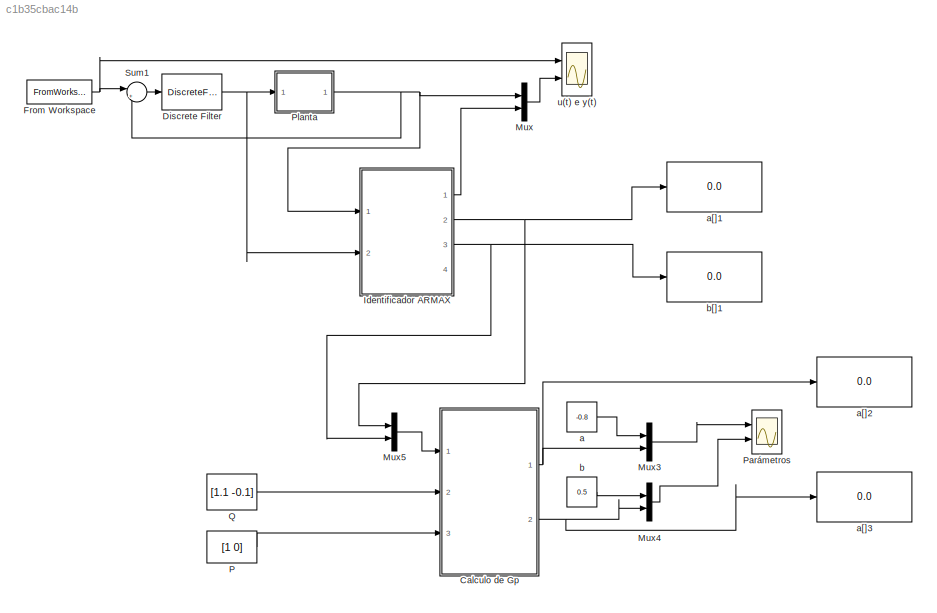
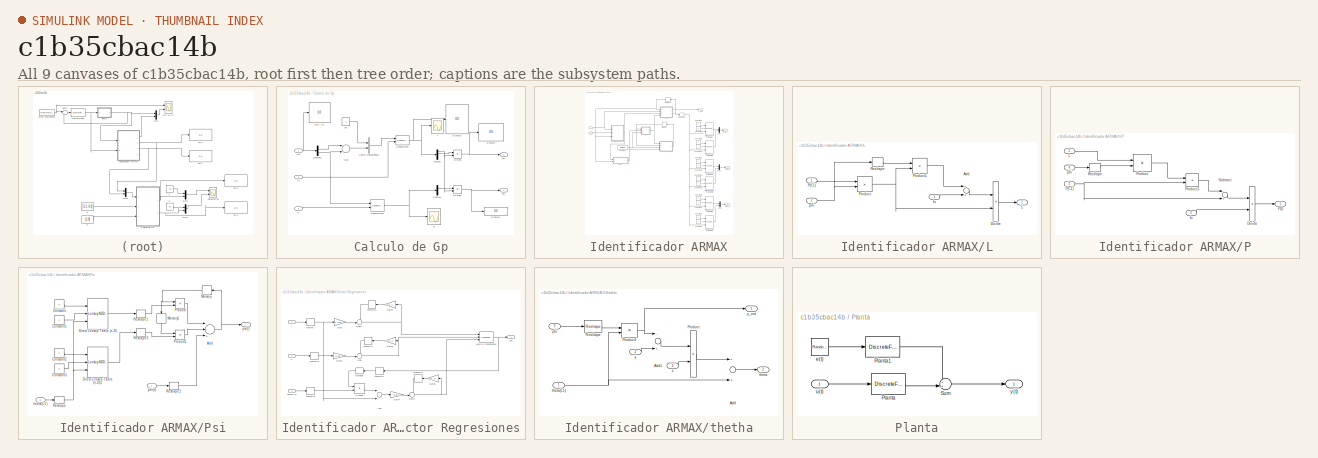
[diagram: thumbnail index - all 9 canvases of the model, root first then tree order]
MODEL slx_c1b35cbac14b
KIND model
CONFIG AbsTol = auto
CONFIG FixedStep = auto
CONFIG MaxStep = auto
CONFIG MinStep = auto
CONFIG RelTol = 1e-3
CONFIG SampleTimeConstraint = Unconstrained
CONFIG Solver = ode45
CONFIG SolverMode = Auto
CONFIG SolverName = ode45
CONFIG StartTime = 0.0
CONFIG StopTime = 520
BLOCK [SubSystem] Calculo de Gp
  Ports = [3, 2]
  RequestExecContextInheritance = off
BLOCK [Scope] Calculo de Gp/A
  DataFormat = StructureWithTime
  Floating = off
  NumInputPorts = 1
  Ports = [1]
  SampleTime = 0
  SaveName = ScopeData2
BLOCK [Scope] Calculo de Gp/B
  DataFormat = StructureWithTime
  Floating = off
  NumInputPorts = 1
  Ports = [1]
  SampleTime = 0
  SaveName = ScopeData3
BLOCK [Display] Calculo de Gp/Bb y Ab 
  Decimation = 1
  Ports = [1]
BLOCK [Reference] Calculo de Gp/Convolution  REF=dspsigops/Convolution
  LockScale = off
  Ports = [2, 1]
  SourceBlock = dspsigops/Convolution
  SourceType = Convolution
  accumDataTypeStr = Inherit: Inherit via internal rule
  accumFracLength = 30
  accumLastDataTypeStr = Inherit: Inherit via internal rule
  accumMode = Inherit via internal rule
  accumWordLength = 32
  additionalParams = off
  allowOverrides = on
  domain = Time
  outputDataTypeStr = Inherit: Same as accumulator
  outputFracLength = 15
  outputLastDataTypeStr = Inherit: Same as accumulator
  outputMax = []
  outputMin = []
  outputMode = Same as accumulator
  outputWordLength = 16
  overflowMode = off
  prodOutputDataTypeStr = Inherit: Inherit via internal rule
  prodOutputFracLength = 30
  prodOutputLastDataTypeStr = Inherit: Inherit via internal rule
  prodOutputMode = Inherit via internal rule
  prodOutputWordLength = 32
  roundingMode = Floor
BLOCK [Reference] Calculo de Gp/Convolution1  REF=dspsigops/Convolution
  LockScale = off
  Ports = [2, 1]
  SourceBlock = dspsigops/Convolution
  SourceType = Convolution
  accumDataTypeStr = Inherit: Inherit via internal rule
  accumFracLength = 30
  accumLastDataTypeStr = Inherit: Inherit via internal rule
  accumMode = Inherit via internal rule
  accumWordLength = 32
  additionalParams = off
  allowOverrides = on
  domain = Time
  outputDataTypeStr = Inherit: Same as accumulator
  outputFracLength = 15
  outputLastDataTypeStr = Inherit: Same as accumulator
  outputMax = []
  outputMin = []
  outputMode = Same as accumulator
  outputWordLength = 16
  overflowMode = off
  prodOutputDataTypeStr = Inherit: Inherit via internal rule
  prodOutputFracLength = 30
  prodOutputLastDataTypeStr = Inherit: Inherit via internal rule
  prodOutputMode = Inherit via internal rule
  prodOutputWordLength = 32
  roundingMode = Floor
BLOCK [Demux] Calculo de Gp/Demux
  DisplayOption = bar
  Ports = [1, 4]
BLOCK [Demux] Calculo de Gp/Demux1
  DisplayOption = bar
  Outputs = 3
  Ports = [1, 3]
BLOCK [Demux] Calculo de Gp/Demux2
  DisplayOption = bar
  Outputs = 2
  Ports = [1, 2]
BLOCK [Display] Calculo de Gp/Display
  Decimation = 1
  Ports = [1]
BLOCK [Display] Calculo de Gp/Display1
  Decimation = 1
  Ports = [1]
BLOCK [Display] Calculo de Gp/Display2
  Decimation = 1
  Ports = [1]
BLOCK [Product] Calculo de Gp/Divide
  InputSameDT = off
  Inputs = */
  OutDataTypeStr = Inherit: Inherit via internal rule
  Ports = [2, 1]
  RndMeth = Floor
  SaturateOnIntegerOverflow = off
BLOCK [Product] Calculo de Gp/Divide1
  InputSameDT = off
  Inputs = */
  OutDataTypeStr = Inherit: Inherit via internal rule
  Ports = [2, 1]
  RndMeth = Floor
  SaturateOnIntegerOverflow = off
BLOCK [Inport] Calculo de Gp/Gcl
  IconDisplay = Port number
BLOCK [Inport] Calculo de Gp/P
  IconDisplay = Port number
  Port = 3
BLOCK [Inport] Calculo de Gp/Q
  IconDisplay = Port number
  Port = 2
BLOCK [Sum] Calculo de Gp/Sum
  InputSameDT = off
  Inputs = +-
  OutDataTypeStr = Inherit: Inherit via internal rule
  Ports = [2, 1]
  SaturateOnIntegerOverflow = off
BLOCK [Concatenate] Calculo de Gp/Vector Concatenate
  Ports = [2, 1]
BLOCK [Constant] Calculo de Gp/a0
BLOCK [Outport] Calculo de Gp/a[]
  IconDisplay = Port number
BLOCK [Outport] Calculo de Gp/b[]
  IconDisplay = Port number
  Port = 2
BLOCK [DiscreteFilter] Discrete Filter
  Denominator = [1]
  InputPortMap = u0
  Numerator = [1.1 -0.1]
  Ports = [1, 1]
BLOCK [FromWorkspace] From Workspace
  SampleTime = Ts
  VariableName = prbs
  ZeroCross = on
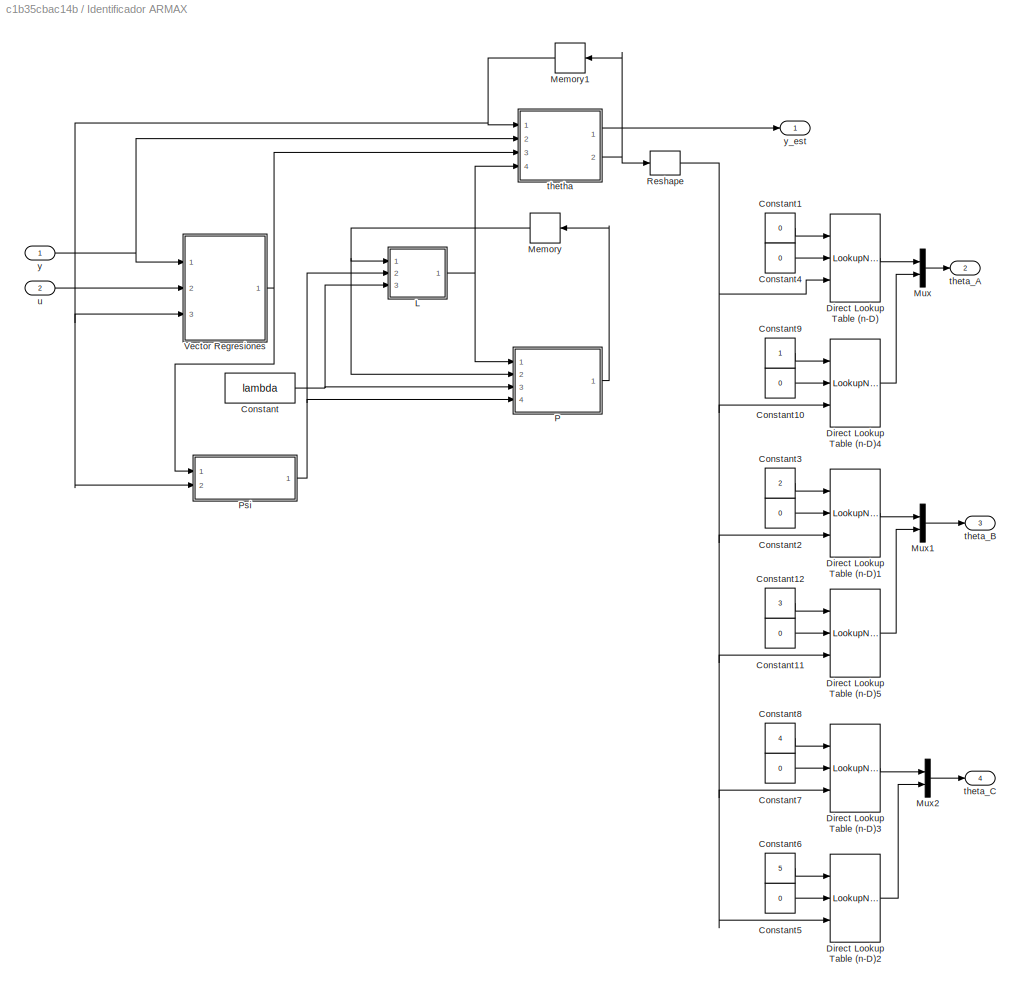
BLOCK [SubSystem] Identificador ARMAX
  Ports = [2, 4]
  RequestExecContextInheritance = off
BLOCK [Constant] Identificador ARMAX/Constant
  Value = lambda
BLOCK [Constant] Identificador ARMAX/Constant1
  Value = 0
BLOCK [Constant] Identificador ARMAX/Constant10
  Value = 0
BLOCK [Constant] Identificador ARMAX/Constant11
  Value = 0
BLOCK [Constant] Identificador ARMAX/Constant12
  Value = 3
BLOCK [Constant] Identificador ARMAX/Constant2
  Value = 0
BLOCK [Constant] Identificador ARMAX/Constant3
  Value = 2
BLOCK [Constant] Identificador ARMAX/Constant4
  Value = 0
BLOCK [Constant] Identificador ARMAX/Constant5
  Value = 0
BLOCK [Constant] Identificador ARMAX/Constant6
  Value = 5
BLOCK [Constant] Identificador ARMAX/Constant7
  Value = 0
BLOCK [Constant] Identificador ARMAX/Constant8
  Value = 4
BLOCK [Constant] Identificador ARMAX/Constant9
BLOCK [LookupNDDirect] Identificador ARMAX/Direct Lookup Table (n-D)
  Ports = [3, 1]
  TableIsInput = on
BLOCK [LookupNDDirect] Identificador ARMAX/Direct Lookup Table (n-D)1
  Ports = [3, 1]
  TableIsInput = on
BLOCK [LookupNDDirect] Identificador ARMAX/Direct Lookup Table (n-D)2
  Ports = [3, 1]
  TableIsInput = on
BLOCK [LookupNDDirect] Identificador ARMAX/Direct Lookup Table (n-D)3
  Ports = [3, 1]
  TableIsInput = on
BLOCK [LookupNDDirect] Identificador ARMAX/Direct Lookup Table (n-D)4
  Ports = [3, 1]
  TableIsInput = on
BLOCK [LookupNDDirect] Identificador ARMAX/Direct Lookup Table (n-D)5
  Ports = [3, 1]
  TableIsInput = on
BLOCK [SubSystem] Identificador ARMAX/L
  Ports = [3, 1]
  RequestExecContextInheritance = off
BLOCK [Sum] Identificador ARMAX/L/Add
  InputSameDT = off
  OutDataTypeStr = Inherit: Inherit via internal rule
  Ports = [2, 1]
  SaturateOnIntegerOverflow = off
BLOCK [Product] Identificador ARMAX/L/Divide
  InputSameDT = off
  Inputs = /*
  OutDataTypeStr = Inherit: Inherit via internal rule
  Ports = [2, 1]
  RndMeth = Floor
  SaturateOnIntegerOverflow = off
BLOCK [Outport] Identificador ARMAX/L/L
  IconDisplay = Port number
BLOCK [Inport] Identificador ARMAX/L/P(t-1)
  IconDisplay = Port number
BLOCK [Product] Identificador ARMAX/L/Product
  InputSameDT = off
  Multiplication = Matrix(*)
  OutDataTypeStr = Inherit: Inherit via internal rule
  Ports = [2, 1]
  RndMeth = Floor
  SaturateOnIntegerOverflow = off
BLOCK [Product] Identificador ARMAX/L/Product1
  InputSameDT = off
  Multiplication = Matrix(*)
  OutDataTypeStr = Inherit: Inherit via internal rule
  Ports = [2, 1]
  RndMeth = Floor
  SaturateOnIntegerOverflow = off
BLOCK [Reshape] Identificador ARMAX/L/Reshape
  OutputDimensionality = Row vector (2-D)
  Ports = [1, 1]
BLOCK [Inport] Identificador ARMAX/L/fo
  IconDisplay = Port number
  Port = 3
BLOCK [Inport] Identificador ARMAX/L/phi
  IconDisplay = Port number
  Port = 2
BLOCK [Memory] Identificador ARMAX/Memory
  X0 = 1e6*eye(6)
BLOCK [Memory] Identificador ARMAX/Memory1
BLOCK [Mux] Identificador ARMAX/Mux
  DisplayOption = bar
  Inputs = 2
  Ports = [2, 1]
BLOCK [Mux] Identificador ARMAX/Mux1
  DisplayOption = bar
  Inputs = 2
  Ports = [2, 1]
BLOCK [Mux] Identificador ARMAX/Mux2
  DisplayOption = bar
  Inputs = 2
  Ports = [2, 1]
BLOCK [SubSystem] Identificador ARMAX/P
  Ports = [4, 1]
  RequestExecContextInheritance = off
BLOCK [Product] Identificador ARMAX/P/Divide
  InputSameDT = off
  Inputs = */
  OutDataTypeStr = Inherit: Inherit via internal rule
  Ports = [2, 1]
  RndMeth = Floor
  SaturateOnIntegerOverflow = off
BLOCK [Inport] Identificador ARMAX/P/L
  IconDisplay = Port number
BLOCK [Outport] Identificador ARMAX/P/P(t)
  IconDisplay = Port number
BLOCK [Inport] Identificador ARMAX/P/P(t-1)
  IconDisplay = Port number
  Port = 2
BLOCK [Product] Identificador ARMAX/P/Product
  InputSameDT = off
  Multiplication = Matrix(*)
  OutDataTypeStr = Inherit: Inherit via internal rule
  Ports = [2, 1]
  RndMeth = Floor
  SaturateOnIntegerOverflow = off
BLOCK [Product] Identificador ARMAX/P/Product1
  InputSameDT = off
  Multiplication = Matrix(*)
  OutDataTypeStr = Inherit: Inherit via internal rule
  Ports = [2, 1]
  RndMeth = Floor
  SaturateOnIntegerOverflow = off
BLOCK [Reshape] Identificador ARMAX/P/Reshape
  OutputDimensionality = Row vector (2-D)
  Ports = [1, 1]
BLOCK [Sum] Identificador ARMAX/P/Subtract
  InputSameDT = off
  Inputs = -+
  OutDataTypeStr = Inherit: Inherit via internal rule
  Ports = [2, 1]
  SaturateOnIntegerOverflow = off
BLOCK [Inport] Identificador ARMAX/P/fo
  IconDisplay = Port number
  Port = 3
BLOCK [Inport] Identificador ARMAX/P/phi
  IconDisplay = Port number
  Port = 4
BLOCK [SubSystem] Identificador ARMAX/Psi
  Ports = [2, 1]
  RequestExecContextInheritance = off
BLOCK [Sum] Identificador ARMAX/Psi/Add
  InputSameDT = off
  Inputs = --+
  OutDataTypeStr = Inherit: Inherit via internal rule
  Ports = [3, 1]
  SaturateOnIntegerOverflow = off
BLOCK [Constant] Identificador ARMAX/Psi/Constant
  Value = 4
BLOCK [Constant] Identificador ARMAX/Psi/Constant1
  Value = 0
BLOCK [Constant] Identificador ARMAX/Psi/Constant2
  Value = 5
BLOCK [Constant] Identificador ARMAX/Psi/Constant3
  Value = 0
BLOCK [LookupNDDirect] Identificador ARMAX/Psi/Direct Lookup Table (n-D)
  Ports = [3, 1]
  TableIsInput = on
BLOCK [LookupNDDirect] Identificador ARMAX/Psi/Direct Lookup Table (n-D)1
  Ports = [3, 1]
  TableIsInput = on
BLOCK [Memory] Identificador ARMAX/Psi/Memory
BLOCK [Memory] Identificador ARMAX/Psi/Memory1
BLOCK [Product] Identificador ARMAX/Psi/Product
  InputSameDT = off
  Multiplication = Matrix(*)
  OutDataTypeStr = Inherit: Inherit via internal rule
  Ports = [2, 1]
  RndMeth = Floor
  SaturateOnIntegerOverflow = off
BLOCK [Product] Identificador ARMAX/Psi/Product1
  InputSameDT = off
  Multiplication = Matrix(*)
  OutDataTypeStr = Inherit: Inherit via internal rule
  Ports = [2, 1]
  RndMeth = Floor
  SaturateOnIntegerOverflow = off
BLOCK [Reshape] Identificador ARMAX/Psi/Reshape
  OutputDimensionality = Column vector (2-D)
  Ports = [1, 1]
BLOCK [Reshape] Identificador ARMAX/Psi/Reshape1
  OutputDimensionality = Row vector (2-D)
  Ports = [1, 1]
BLOCK [Reshape] Identificador ARMAX/Psi/Reshape2
  OutputDimensionality = Column vector (2-D)
  Ports = [1, 1]
BLOCK [Reshape] Identificador ARMAX/Psi/Reshape3
  OutputDimensionality = Row vector (2-D)
  Ports = [1, 1]
BLOCK [Inport] Identificador ARMAX/Psi/phi(t)
  IconDisplay = Port number
BLOCK [Outport] Identificador ARMAX/Psi/psi(t)
  IconDisplay = Port number
BLOCK [Inport] Identificador ARMAX/Psi/theta(t-1)
  IconDisplay = Port number
  Port = 2
BLOCK [Reshape] Identificador ARMAX/Reshape
  OutputDimensionality = Column vector (2-D)
  Ports = [1, 1]
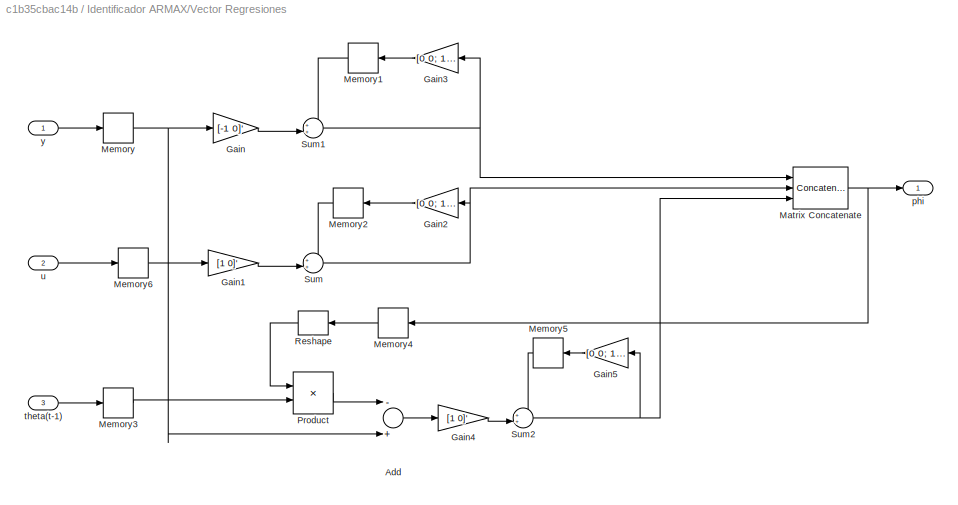
BLOCK [SubSystem] Identificador ARMAX/Vector Regresiones
  Ports = [3, 1]
  RequestExecContextInheritance = off
BLOCK [Sum] Identificador ARMAX/Vector Regresiones/Add
  InputSameDT = off
  Inputs = -+
  OutDataTypeStr = Inherit: Inherit via internal rule
  Ports = [2, 1]
  SaturateOnIntegerOverflow = off
BLOCK [Gain] Identificador ARMAX/Vector Regresiones/Gain
  Gain = [-1 0]'
  Multiplication = Matrix(K*u)
  OutDataTypeStr = Inherit: Inherit via internal rule
  ParamDataTypeStr = Inherit: Inherit via internal rule
  SaturateOnIntegerOverflow = off
BLOCK [Gain] Identificador ARMAX/Vector Regresiones/Gain1
  Gain = [1 0]'
  Multiplication = Matrix(K*u)
  OutDataTypeStr = Inherit: Inherit via internal rule
  ParamDataTypeStr = Inherit: Inherit via internal rule
  SaturateOnIntegerOverflow = off
BLOCK [Gain] Identificador ARMAX/Vector Regresiones/Gain2
  Gain = [0 0; 1 0]
  Multiplication = Matrix(K*u)
  OutDataTypeStr = Inherit: Inherit via internal rule
  ParamDataTypeStr = Inherit: Inherit via internal rule
  SaturateOnIntegerOverflow = off
BLOCK [Gain] Identificador ARMAX/Vector Regresiones/Gain3
  Gain = [0 0; 1 0]
  Multiplication = Matrix(K*u)
  OutDataTypeStr = Inherit: Inherit via internal rule
  ParamDataTypeStr = Inherit: Inherit via internal rule
  SaturateOnIntegerOverflow = off
BLOCK [Gain] Identificador ARMAX/Vector Regresiones/Gain4
  Gain = [1 0]'
  Multiplication = Matrix(K*u)
  OutDataTypeStr = Inherit: Inherit via internal rule
  ParamDataTypeStr = Inherit: Inherit via internal rule
  SaturateOnIntegerOverflow = off
BLOCK [Gain] Identificador ARMAX/Vector Regresiones/Gain5
  Gain = [0 0; 1 0]
  Multiplication = Matrix(K*u)
  OutDataTypeStr = Inherit: Inherit via internal rule
  ParamDataTypeStr = Inherit: Inherit via internal rule
  SaturateOnIntegerOverflow = off
BLOCK [Concatenate] Identificador ARMAX/Vector Regresiones/Matrix Concatenate
  Mode = Multidimensional array
  NumInputs = 3
  Ports = [3, 1]
BLOCK [Memory] Identificador ARMAX/Vector Regresiones/Memory
BLOCK [Memory] Identificador ARMAX/Vector Regresiones/Memory1
BLOCK [Memory] Identificador ARMAX/Vector Regresiones/Memory2
BLOCK [Memory] Identificador ARMAX/Vector Regresiones/Memory3
BLOCK [Memory] Identificador ARMAX/Vector Regresiones/Memory4
BLOCK [Memory] Identificador ARMAX/Vector Regresiones/Memory5
BLOCK [Memory] Identificador ARMAX/Vector Regresiones/Memory6
BLOCK [Product] Identificador ARMAX/Vector Regresiones/Product
  InputSameDT = off
  Multiplication = Matrix(*)
  OutDataTypeStr = Inherit: Inherit via internal rule
  Ports = [2, 1]
  RndMeth = Floor
  SaturateOnIntegerOverflow = off
BLOCK [Reshape] Identificador ARMAX/Vector Regresiones/Reshape
  OutputDimensionality = Row vector (2-D)
  Ports = [1, 1]
BLOCK [Sum] Identificador ARMAX/Vector Regresiones/Sum
  IconShape = round
  InputSameDT = off
  Inputs = ++|
  OutDataTypeStr = Inherit: Inherit via internal rule
  Ports = [2, 1]
  SaturateOnIntegerOverflow = off
BLOCK [Sum] Identificador ARMAX/Vector Regresiones/Sum1
  IconShape = round
  InputSameDT = off
  Inputs = ++|
  OutDataTypeStr = Inherit: Inherit via internal rule
  Ports = [2, 1]
  SaturateOnIntegerOverflow = off
BLOCK [Sum] Identificador ARMAX/Vector Regresiones/Sum2
  IconShape = round
  InputSameDT = off
  Inputs = ++|
  OutDataTypeStr = Inherit: Inherit via internal rule
  Ports = [2, 1]
  SaturateOnIntegerOverflow = off
BLOCK [Outport] Identificador ARMAX/Vector Regresiones/phi
  IconDisplay = Port number
BLOCK [Inport] Identificador ARMAX/Vector Regresiones/theta(t-1)
  IconDisplay = Port number
  Port = 3
BLOCK [Inport] Identificador ARMAX/Vector Regresiones/u
  IconDisplay = Port number
  Port = 2
BLOCK [Inport] Identificador ARMAX/Vector Regresiones/y
  IconDisplay = Port number
BLOCK [Outport] Identificador ARMAX/theta_A
  IconDisplay = Port number
  Port = 2
BLOCK [Outport] Identificador ARMAX/theta_B
  IconDisplay = Port number
  Port = 3
BLOCK [Outport] Identificador ARMAX/theta_C
  IconDisplay = Port number
  Port = 4
BLOCK [SubSystem] Identificador ARMAX/thetha
  Ports = [4, 2]
  RequestExecContextInheritance = off
BLOCK [Sum] Identificador ARMAX/thetha/Add
  InputSameDT = off
  OutDataTypeStr = Inherit: Inherit via internal rule
  Ports = [2, 1]
  SaturateOnIntegerOverflow = off
BLOCK [Sum] Identificador ARMAX/thetha/Add1
  InputSameDT = off
  Inputs = -+
  OutDataTypeStr = Inherit: Inherit via internal rule
  Ports = [2, 1]
  SaturateOnIntegerOverflow = off
BLOCK [Inport] Identificador ARMAX/thetha/L
  IconDisplay = Port number
  Port = 4
BLOCK [Product] Identificador ARMAX/thetha/Product
  InputSameDT = off
  OutDataTypeStr = Inherit: Inherit via internal rule
  Ports = [2, 1]
  RndMeth = Floor
  SaturateOnIntegerOverflow = off
BLOCK [Product] Identificador ARMAX/thetha/Product1
  InputSameDT = off
  Multiplication = Matrix(*)
  OutDataTypeStr = Inherit: Inherit via internal rule
  Ports = [2, 1]
  RndMeth = Floor
  SaturateOnIntegerOverflow = off
BLOCK [Reshape] Identificador ARMAX/thetha/Reshape
  OutputDimensionality = Row vector (2-D)
  Ports = [1, 1]
BLOCK [Inport] Identificador ARMAX/thetha/phi
  IconDisplay = Port number
  Port = 3
BLOCK [Outport] Identificador ARMAX/thetha/theta
  IconDisplay = Port number
  Port = 2
BLOCK [Inport] Identificador ARMAX/thetha/theta(t-1)
  IconDisplay = Port number
BLOCK [Inport] Identificador ARMAX/thetha/y
  IconDisplay = Port number
  Port = 2
BLOCK [Outport] Identificador ARMAX/thetha/y_est
  IconDisplay = Port number
BLOCK [Inport] Identificador ARMAX/u
  IconDisplay = Port number
  Port = 2
BLOCK [Inport] Identificador ARMAX/y
  IconDisplay = Port number
BLOCK [Outport] Identificador ARMAX/y_est
  IconDisplay = Port number
BLOCK [Mux] Mux
  DisplayOption = bar
  Inputs = 2
  Ports = [2, 1]
BLOCK [Mux] Mux3
  DisplayOption = bar
  Inputs = 2
  Ports = [2, 1]
BLOCK [Mux] Mux4
  DisplayOption = bar
  Inputs = 2
  Ports = [2, 1]
BLOCK [Mux] Mux5
  DisplayOption = bar
  Inputs = 2
  Ports = [2, 1]
BLOCK [Constant] P
  Value = [1 0]
BLOCK [Scope] Parámetros
  Floating = off
  LimitDataPoints = off
  NumInputPorts = 2
  Ports = [2]
  SaveName = ScopeData4
  YMax = 5~5
  YMin = -5~-5
BLOCK [SubSystem] Planta
  Ports = [1, 1]
  RequestExecContextInheritance = off
BLOCK [DiscreteFilter] Planta/Planta
  Denominator = [1 -0.8]
  InputPortMap = u0
  Numerator = [0 0.5]
  Ports = [1, 1]
  SampleTime = Ts
BLOCK [DiscreteFilter] Planta/Planta1
  Denominator = [1]
  InputPortMap = u0
  Ports = [1, 1]
  SampleTime = Ts
BLOCK [Sum] Planta/Sum
  IconShape = round
  InputSameDT = off
  Inputs = ++|
  OutDataTypeStr = Inherit: Inherit via internal rule
  Ports = [2, 1]
  SaturateOnIntegerOverflow = off
BLOCK [RandomNumber] Planta/e(t)
  SampleTime = Ts
  Variance = 0.0001
BLOCK [Inport] Planta/u(t)
  IconDisplay = Port number
BLOCK [Outport] Planta/y(t)
  IconDisplay = Port number
BLOCK [Constant] Q
  Value = [1.1 -0.1]
BLOCK [Sum] Sum1
  IconShape = round
  InputSameDT = off
  Inputs = |+-
  OutDataTypeStr = Inherit: Inherit via internal rule
  Ports = [2, 1]
  SaturateOnIntegerOverflow = off
BLOCK [Constant] a
  Value = -0.8
BLOCK [Display] a[]1
  Decimation = 1
  Ports = [1]
BLOCK [Display] a[]2
  Decimation = 1
  Ports = [1]
BLOCK [Display] a[]3
  Decimation = 1
  Ports = [1]
BLOCK [Constant] b
  Value = 0.5
BLOCK [Display] b[]1
  Decimation = 1
  Ports = [1]
BLOCK [Scope] u(t) e y(t)
  Floating = off
  LimitDataPoints = off
  NumInputPorts = 2
  Ports = [2]
  SaveName = ScopeData1
  YMax = 5~5
  YMin = -5~-5
NET Calculo de Gp/Convolution1:1 -> Calculo de Gp/B:1, Calculo de Gp/Demux1:1
NET Calculo de Gp/Convolution:1 -> Calculo de Gp/A:1, Calculo de Gp/Demux:1, Calculo de Gp/Display2:1
LINE Calculo de Gp/Demux1:1 -> Calculo de Gp/Divide1:1
LINE Calculo de Gp/Demux2:1 -> Calculo de Gp/Sum:1
NET Calculo de Gp/Demux2:2 -> Calculo de Gp/Convolution1:1, Calculo de Gp/Sum:2
NET Calculo de Gp/Demux:1 -> Calculo de Gp/Divide1:2, Calculo de Gp/Divide:2
LINE Calculo de Gp/Demux:2 -> Calculo de Gp/Divide:1
NET Calculo de Gp/Divide1:1 -> Calculo de Gp/Display1:1, Calculo de Gp/b[]:1
NET Calculo de Gp/Divide:1 -> Calculo de Gp/Display:1, Calculo de Gp/a[]:1
NET Calculo de Gp/Gcl:1 -> Calculo de Gp/Bb y Ab :1, Calculo de Gp/Demux2:1
LINE Calculo de Gp/P:1 -> Calculo de Gp/Convolution1:2
LINE Calculo de Gp/Q:1 -> Calculo de Gp/Convolution:2
LINE Calculo de Gp/Sum:1 -> Calculo de Gp/Vector Concatenate:2
LINE Calculo de Gp/Vector Concatenate:1 -> Calculo de Gp/Convolution:1
LINE Calculo de Gp/a0:1 -> Calculo de Gp/Vector Concatenate:1
NET Calculo de Gp:1 -> Mux3:2, a[]2:1
NET Calculo de Gp:2 -> Mux4:2, a[]3:1
NET Discrete Filter:1 -> Identificador ARMAX:2, Planta:1
NET From Workspace:1 -> Sum1:1, u(t) e y(t):1
LINE Identificador ARMAX/Constant10:1 -> Identificador ARMAX/Direct Lookup Table (n-D)4:2
LINE Identificador ARMAX/Constant11:1 -> Identificador ARMAX/Direct Lookup Table (n-D)5:2
LINE Identificador ARMAX/Constant12:1 -> Identificador ARMAX/Direct Lookup Table (n-D)5:1
LINE Identificador ARMAX/Constant1:1 -> Identificador ARMAX/Direct Lookup Table (n-D):1
LINE Identificador ARMAX/Constant2:1 -> Identificador ARMAX/Direct Lookup Table (n-D)1:2
LINE Identificador ARMAX/Constant3:1 -> Identificador ARMAX/Direct Lookup Table (n-D)1:1
LINE Identificador ARMAX/Constant4:1 -> Identificador ARMAX/Direct Lookup Table (n-D):2
LINE Identificador ARMAX/Constant5:1 -> Identificador ARMAX/Direct Lookup Table (n-D)2:2
LINE Identificador ARMAX/Constant6:1 -> Identificador ARMAX/Direct Lookup Table (n-D)2:1
LINE Identificador ARMAX/Constant7:1 -> Identificador ARMAX/Direct Lookup Table (n-D)3:2
LINE Identificador ARMAX/Constant8:1 -> Identificador ARMAX/Direct Lookup Table (n-D)3:1
LINE Identificador ARMAX/Constant9:1 -> Identificador ARMAX/Direct Lookup Table (n-D)4:1
NET Identificador ARMAX/Constant:1 -> Identificador ARMAX/L:3, Identificador ARMAX/P:3
LINE Identificador ARMAX/Direct Lookup Table (n-D)1:1 -> Identificador ARMAX/Mux1:1
LINE Identificador ARMAX/Direct Lookup Table (n-D)2:1 -> Identificador ARMAX/Mux2:2
LINE Identificador ARMAX/Direct Lookup Table (n-D)3:1 -> Identificador ARMAX/Mux2:1
LINE Identificador ARMAX/Direct Lookup Table (n-D)4:1 -> Identificador ARMAX/Mux:2
LINE Identificador ARMAX/Direct Lookup Table (n-D)5:1 -> Identificador ARMAX/Mux1:2
LINE Identificador ARMAX/Direct Lookup Table (n-D):1 -> Identificador ARMAX/Mux:1
LINE Identificador ARMAX/L/Add:1 -> Identificador ARMAX/L/Divide:1
LINE Identificador ARMAX/L/Divide:1 -> Identificador ARMAX/L/L:1
LINE Identificador ARMAX/L/P(t-1):1 -> Identificador ARMAX/L/Product:1
LINE Identificador ARMAX/L/Product1:1 -> Identificador ARMAX/L/Add:1
NET Identificador ARMAX/L/Product:1 -> Identificador ARMAX/L/Divide:2, Identificador ARMAX/L/Product1:2
LINE Identificador ARMAX/L/Reshape:1 -> Identificador ARMAX/L/Product1:1
LINE Identificador ARMAX/L/fo:1 -> Identificador ARMAX/L/Add:2
NET Identificador ARMAX/L/phi:1 -> Identificador ARMAX/L/Product:2, Identificador ARMAX/L/Reshape:1
NET Identificador ARMAX/L:1 -> Identificador ARMAX/P:1, Identificador ARMAX/thetha:4
NET Identificador ARMAX/Memory1:1 -> Identificador ARMAX/Psi:2, Identificador ARMAX/Vector Regresiones:3, Identificador ARMAX/thetha:1
NET Identificador ARMAX/Memory:1 -> Identificador ARMAX/L:1, Identificador ARMAX/P:2
LINE Identificador ARMAX/Mux1:1 -> Identificador ARMAX/theta_B:1
LINE Identificador ARMAX/Mux2:1 -> Identificador ARMAX/theta_C:1
LINE Identificador ARMAX/Mux:1 -> Identificador ARMAX/theta_A:1
LINE Identificador ARMAX/P/Divide:1 -> Identificador ARMAX/P/P(t):1
LINE Identificador ARMAX/P/L:1 -> Identificador ARMAX/P/Product:1
NET Identificador ARMAX/P/P(t-1):1 -> Identificador ARMAX/P/Product1:2, Identificador ARMAX/P/Subtract:2
LINE Identificador ARMAX/P/Product1:1 -> Identificador ARMAX/P/Subtract:1
LINE Identificador ARMAX/P/Product:1 -> Identificador ARMAX/P/Product1:1
LINE Identificador ARMAX/P/Reshape:1 -> Identificador ARMAX/P/Product:2
LINE Identificador ARMAX/P/Subtract:1 -> Identificador ARMAX/P/Divide:1
LINE Identificador ARMAX/P/fo:1 -> Identificador ARMAX/P/Divide:2
LINE Identificador ARMAX/P/phi:1 -> Identificador ARMAX/P/Reshape:1
LINE Identificador ARMAX/P:1 -> Identificador ARMAX/Memory:1
NET Identificador ARMAX/Psi/Add:1 -> Identificador ARMAX/Psi/Memory:1, Identificador ARMAX/Psi/psi(t):1
LINE Identificador ARMAX/Psi/Constant1:1 -> Identificador ARMAX/Psi/Direct Lookup Table (n-D):2
LINE Identificador ARMAX/Psi/Constant2:1 -> Identificador ARMAX/Psi/Direct Lookup Table (n-D)1:1
LINE Identificador ARMAX/Psi/Constant3:1 -> Identificador ARMAX/Psi/Direct Lookup Table (n-D)1:2
LINE Identificador ARMAX/Psi/Constant:1 -> Identificador ARMAX/Psi/Direct Lookup Table (n-D):1
LINE Identificador ARMAX/Psi/Direct Lookup Table (n-D)1:1 -> Identificador ARMAX/Psi/Reshape3:1
LINE Identificador ARMAX/Psi/Direct Lookup Table (n-D):1 -> Identificador ARMAX/Psi/Reshape1:1
LINE Identificador ARMAX/Psi/Memory1:1 -> Identificador ARMAX/Psi/Product1:1
NET Identificador ARMAX/Psi/Memory:1 -> Identificador ARMAX/Psi/Memory1:1, Identificador ARMAX/Psi/Product:1
LINE Identificador ARMAX/Psi/Product1:1 -> Identificador ARMAX/Psi/Add:2
LINE Identificador ARMAX/Psi/Product:1 -> Identificador ARMAX/Psi/Add:1
LINE Identificador ARMAX/Psi/Reshape1:1 -> Identificador ARMAX/Psi/Product:2
LINE Identificador ARMAX/Psi/Reshape2:1 -> Identificador ARMAX/Psi/Add:3
LINE Identificador ARMAX/Psi/Reshape3:1 -> Identificador ARMAX/Psi/Product1:2
NET Identificador ARMAX/Psi/Reshape:1 -> Identificador ARMAX/Psi/Direct Lookup Table (n-D)1:3, Identificador ARMAX/Psi/Direct Lookup Table (n-D):3
LINE Identificador ARMAX/Psi/phi(t):1 -> Identificador ARMAX/Psi/Reshape2:1
LINE Identificador ARMAX/Psi/theta(t-1):1 -> Identificador ARMAX/Psi/Reshape:1
NET Identificador ARMAX/Psi:1 -> Identificador ARMAX/L:2, Identificador ARMAX/P:4
NET Identificador ARMAX/Reshape:1 -> Identificador ARMAX/Direct Lookup Table (n-D)1:3, Identificador ARMAX/Direct Lookup Table (n-D)2:3, Identificador ARMAX/Direct Lookup Table (n-D)3:3, Identificador ARMAX/Direct Lookup Table (n-D)4:3, Identificador ARMAX/Direct Lookup Table (n-D)5:3, Identificador ARMAX/Direct Lookup Table (n-D):3
LINE Identificador ARMAX/Vector Regresiones/Add:1 -> Identificador ARMAX/Vector Regresiones/Gain4:1
LINE Identificador ARMAX/Vector Regresiones/Gain1:1 -> Identificador ARMAX/Vector Regresiones/Sum:2
LINE Identificador ARMAX/Vector Regresiones/Gain2:1 -> Identificador ARMAX/Vector Regresiones/Memory2:1
LINE Identificador ARMAX/Vector Regresiones/Gain3:1 -> Identificador ARMAX/Vector Regresiones/Memory1:1
LINE Identificador ARMAX/Vector Regresiones/Gain4:1 -> Identificador ARMAX/Vector Regresiones/Sum2:2
LINE Identificador ARMAX/Vector Regresiones/Gain5:1 -> Identificador ARMAX/Vector Regresiones/Memory5:1
LINE Identificador ARMAX/Vector Regresiones/Gain:1 -> Identificador ARMAX/Vector Regresiones/Sum1:2
NET Identificador ARMAX/Vector Regresiones/Matrix Concatenate:1 -> Identificador ARMAX/Vector Regresiones/Memory4:1, Identificador ARMAX/Vector Regresiones/phi:1
LINE Identificador ARMAX/Vector Regresiones/Memory1:1 -> Identificador ARMAX/Vector Regresiones/Sum1:1
LINE Identificador ARMAX/Vector Regresiones/Memory2:1 -> Identificador ARMAX/Vector Regresiones/Sum:1
LINE Identificador ARMAX/Vector Regresiones/Memory3:1 -> Identificador ARMAX/Vector Regresiones/Product:2
LINE Identificador ARMAX/Vector Regresiones/Memory4:1 -> Identificador ARMAX/Vector Regresiones/Reshape:1
LINE Identificador ARMAX/Vector Regresiones/Memory5:1 -> Identificador ARMAX/Vector Regresiones/Sum2:1
LINE Identificador ARMAX/Vector Regresiones/Memory6:1 -> Identificador ARMAX/Vector Regresiones/Gain1:1
NET Identificador ARMAX/Vector Regresiones/Memory:1 -> Identificador ARMAX/Vector Regresiones/Add:2, Identificador ARMAX/Vector Regresiones/Gain:1
LINE Identificador ARMAX/Vector Regresiones/Product:1 -> Identificador ARMAX/Vector Regresiones/Add:1
LINE Identificador ARMAX/Vector Regresiones/Reshape:1 -> Identificador ARMAX/Vector Regresiones/Product:1
NET Identificador ARMAX/Vector Regresiones/Sum1:1 -> Identificador ARMAX/Vector Regresiones/Gain3:1, Identificador ARMAX/Vector Regresiones/Matrix Concatenate:1
NET Identificador ARMAX/Vector Regresiones/Sum2:1 -> Identificador ARMAX/Vector Regresiones/Gain5:1, Identificador ARMAX/Vector Regresiones/Matrix Concatenate:3
NET Identificador ARMAX/Vector Regresiones/Sum:1 -> Identificador ARMAX/Vector Regresiones/Gain2:1, Identificador ARMAX/Vector Regresiones/Matrix Concatenate:2
LINE Identificador ARMAX/Vector Regresiones/theta(t-1):1 -> Identificador ARMAX/Vector Regresiones/Memory3:1
LINE Identificador ARMAX/Vector Regresiones/u:1 -> Identificador ARMAX/Vector Regresiones/Memory6:1
LINE Identificador ARMAX/Vector Regresiones/y:1 -> Identificador ARMAX/Vector Regresiones/Memory:1
NET Identificador ARMAX/Vector Regresiones:1 -> Identificador ARMAX/Psi:1, Identificador ARMAX/thetha:3
LINE Identificador ARMAX/thetha/Add1:1 -> Identificador ARMAX/thetha/Product:1
LINE Identificador ARMAX/thetha/Add:1 -> Identificador ARMAX/thetha/theta:1
LINE Identificador ARMAX/thetha/L:1 -> Identificador ARMAX/thetha/Product:2
NET Identificador ARMAX/thetha/Product1:1 -> Identificador ARMAX/thetha/Add1:1, Identificador ARMAX/thetha/y_est:1
LINE Identificador ARMAX/thetha/Product:1 -> Identificador ARMAX/thetha/Add:1
LINE Identificador ARMAX/thetha/Reshape:1 -> Identificador ARMAX/thetha/Product1:1
LINE Identificador ARMAX/thetha/phi:1 -> Identificador ARMAX/thetha/Reshape:1
NET Identificador ARMAX/thetha/theta(t-1):1 -> Identificador ARMAX/thetha/Add:2, Identificador ARMAX/thetha/Product1:2
LINE Identificador ARMAX/thetha/y:1 -> Identificador ARMAX/thetha/Add1:2
LINE Identificador ARMAX/thetha:1 -> Identificador ARMAX/y_est:1
NET Identificador ARMAX/thetha:2 -> Identificador ARMAX/Memory1:1, Identificador ARMAX/Reshape:1
LINE Identificador ARMAX/u:1 -> Identificador ARMAX/Vector Regresiones:2
NET Identificador ARMAX/y:1 -> Identificador ARMAX/Vector Regresiones:1, Identificador ARMAX/thetha:2
LINE Identificador ARMAX:1 -> Mux:2
NET Identificador ARMAX:2 -> Mux5:1, a[]1:1
NET Identificador ARMAX:3 -> Mux5:2, b[]1:1
LINE Mux3:1 -> Parámetros:1
LINE Mux4:1 -> Parámetros:2
LINE Mux5:1 -> Calculo de Gp:1
LINE Mux:1 -> u(t) e y(t):2
LINE P:1 -> Calculo de Gp:3
LINE Planta/Planta1:1 -> Planta/Sum:1
LINE Planta/Planta:1 -> Planta/Sum:2
LINE Planta/Sum:1 -> Planta/y(t):1
LINE Planta/e(t):1 -> Planta/Planta1:1
LINE Planta/u(t):1 -> Planta/Planta:1
NET Planta:1 -> Identificador ARMAX:1, Mux:1, Sum1:2
LINE Q:1 -> Calculo de Gp:2
LINE Sum1:1 -> Discrete Filter:1
LINE a:1 -> Mux3:1
LINE b:1 -> Mux4:1
note: NET lines group one-source signal fan-out (src -> all destinations, sorted); 1:1 wires keep LINE
